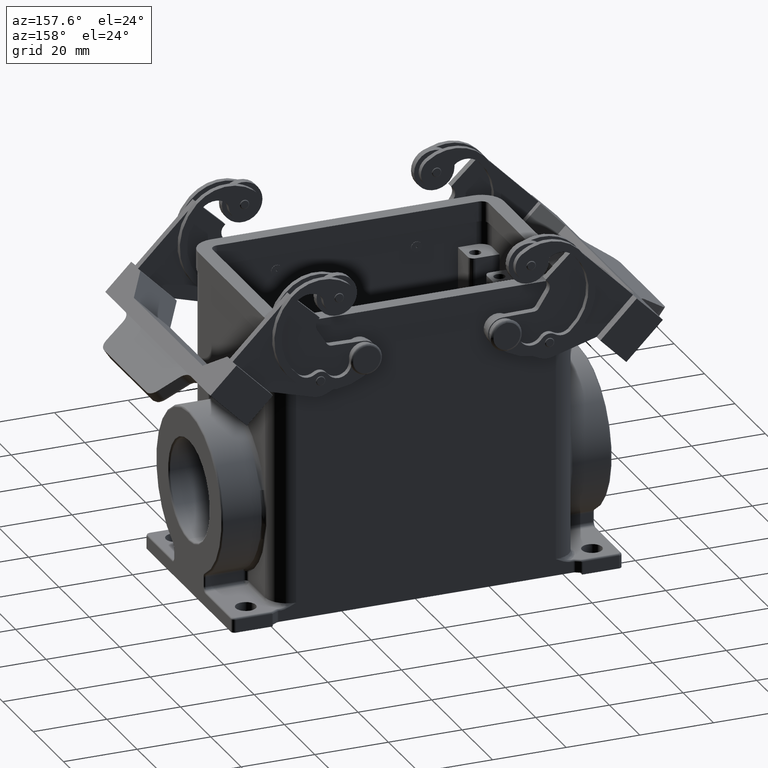
[diagram: clean part render]
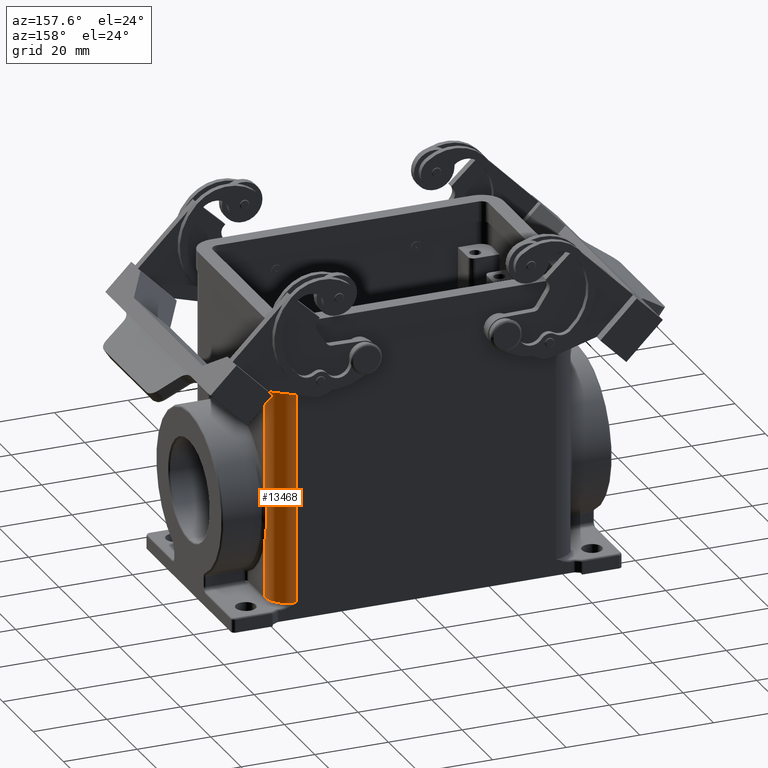
[diagram: same view with one face highlighted and labeled with its STEP entity id]
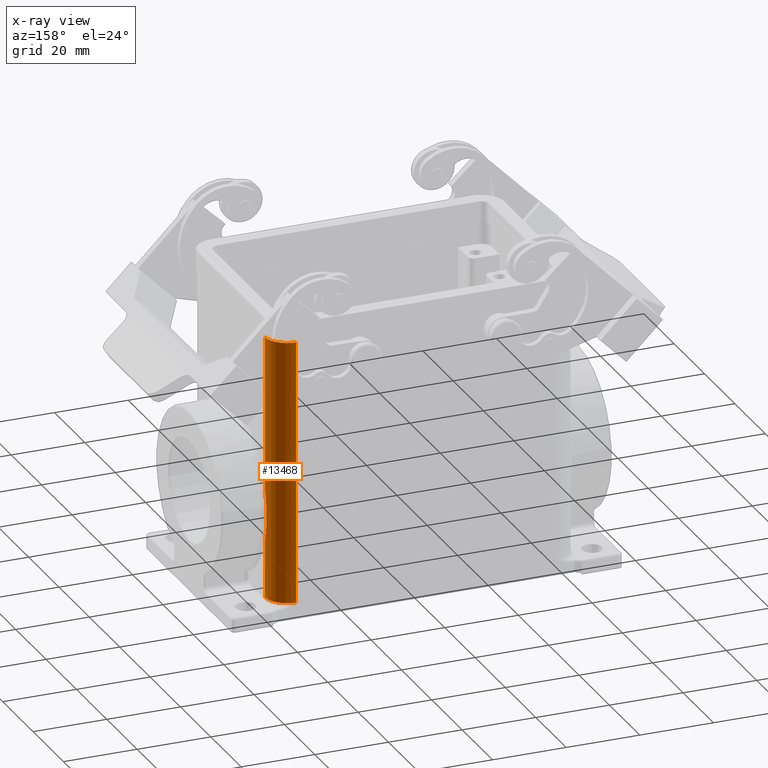
[diagram: x-ray of the same camera — body ghosted, the highlighted face saturated]
A machine part, auxiliary view. The second image highlights one B-rep face of the part: STEP entity #13468.
The next image is the same camera in x-ray: the body ghosted, the highlighted face saturated — about 0% of this face is hidden behind the body in this view.
In plain terms, the highlighted cylindrical surface (edge-blend (fillet) strip) has radius 6 mm, axis along (0, 0, 1).
Its self-contained STEP definition (entity closure, byte-faithful):
#11311=CARTESIAN_POINT('',(35.249999999999993,27.650000000000009,24.0));
#11312=VERTEX_POINT('',#11311);
#11319=CARTESIAN_POINT('',(35.249999999999993,27.650000000000009,-47.500000000000014));
#11320=VERTEX_POINT('',#11319);
#11321=CARTESIAN_POINT('',(35.249999999999993,27.650000000000009,24.0));
#11322=DIRECTION('',(0.0,0.0,-1.0));
#11323=VECTOR('',#11322,71.500000000000014);
#11324=LINE('',#11321,#11323);
#11325=EDGE_CURVE('',#11312,#11320,#11324,.T.);
#12489=CARTESIAN_POINT('',(41.249999999999986,21.650000000000023,-47.500000000000014));
#12490=VERTEX_POINT('',#12489);
#12491=CARTESIAN_POINT('',(35.250000000000000,21.650000000000006,-47.500000000000014));
#12492=DIRECTION('',(0.0,0.0,-1.0));
#12493=DIRECTION('',(0.707106781186547,0.707106781186548,0.0));
#12494=AXIS2_PLACEMENT_3D('',#12491,#12492,#12493);
#12495=CIRCLE('',#12494,6.000000000000001);
#12496=EDGE_CURVE('',#11320,#12490,#12495,.T.);
#13025=CARTESIAN_POINT('',(41.249999999999986,21.650000000000023,-18.011437916137623));
#13026=VERTEX_POINT('',#13025);
#13095=CARTESIAN_POINT('',(41.250000000000000,21.649999999932852,-31.988562084347926));
#13096=VERTEX_POINT('',#13095);
#13104=CARTESIAN_POINT('',(41.250000000000000,21.650000000000020,-18.011437916137623));
#13105=CARTESIAN_POINT('',(41.250000000000000,21.805220176483836,-18.572440724818442));
#13106=CARTESIAN_POINT('',(41.244046877670584,21.942124690431996,-19.141943535699859));
#13107=CARTESIAN_POINT('',(41.223079464294898,22.248326681494568,-20.638391517543351));
#13108=CARTESIAN_POINT('',(41.205154826037301,22.387654440482663,-21.574822176428917));
#13109=CARTESIAN_POINT('',(41.173123984276501,22.618034162891373,-24.021623929477567));
#13110=CARTESIAN_POINT('',(41.170467687304999,22.630886519328172,-25.537186081302185));
#13111=CARTESIAN_POINT('',(41.206483570672518,22.383230514388561,-28.729599003905118));
#13112=CARTESIAN_POINT('',(41.250000000009869,22.090825301110346,-30.395314107705932));
#13113=CARTESIAN_POINT('',(41.250000000000000,21.649999999865681,-31.988562084347926));
#13114=B_SPLINE_CURVE_WITH_KNOTS('',3,(#13104,#13105,#13106,#13107,#13108,#13109,#13110,#13111,#13112,#13113),.UNSPECIFIED.,.F.,.U.,(4,2,2,2,4),(-7.257924E-018,0.176851924676517,0.459815004158944,0.912555931330827,1.414815397412136),.UNSPECIFIED.);
#13115=EDGE_CURVE('',#13096,#13026,#13114,.F.);
#13413=CARTESIAN_POINT('',(41.250000000000007,21.650000000000013,24.0));
#13414=VERTEX_POINT('',#13413);
#13415=CARTESIAN_POINT('',(41.250000000000007,21.650000000000013,24.0));
#13416=DIRECTION('',(0.0,0.0,-1.0));
#13417=VECTOR('',#13416,42.011437916137623);
#13418=LINE('',#13415,#13417);
#13419=EDGE_CURVE('',#13414,#13026,#13418,.T.);
#13440=CARTESIAN_POINT('',(41.250000000000000,21.649999999932852,-31.988562084347926));
#13441=DIRECTION('',(-9.161533E-016,4.330428E-012,-1.0));
#13442=VECTOR('',#13441,15.511437915652088);
#13443=LINE('',#13440,#13442);
#13444=EDGE_CURVE('',#13096,#12490,#13443,.T.);
#13449=CARTESIAN_POINT('',(35.250000000000000,21.650000000000006,1.500000000000000));
#13450=DIRECTION('',(0.0,0.0,1.0));
#13451=DIRECTION('',(-1.0,0.0,0.0));
#13452=AXIS2_PLACEMENT_3D('',#13449,#13450,#13451);
#13453=CYLINDRICAL_SURFACE('',#13452,6.000000000000001);
#13454=ORIENTED_EDGE('',*,*,#13115,.F.);
#13455=ORIENTED_EDGE('',*,*,#13444,.T.);
#13456=ORIENTED_EDGE('',*,*,#12496,.F.);
#13457=ORIENTED_EDGE('',*,*,#11325,.F.);
#13458=CARTESIAN_POINT('',(35.250000000000000,21.650000000000006,24.0));
#13459=DIRECTION('',(0.0,0.0,-1.0));
#13460=DIRECTION('',(-1.0,0.0,0.0));
#13461=AXIS2_PLACEMENT_3D('',#13458,#13459,#13460);
#13462=CIRCLE('',#13461,6.000000000000001);
#13463=EDGE_CURVE('',#11312,#13414,#13462,.T.);
#13464=ORIENTED_EDGE('',*,*,#13463,.T.);
#13465=ORIENTED_EDGE('',*,*,#13419,.T.);
#13466=EDGE_LOOP('',(#13454,#13455,#13456,#13457,#13464,#13465));
#13467=FACE_OUTER_BOUND('',#13466,.T.);
#13468=ADVANCED_FACE('',(#13467),#13453,.T.);